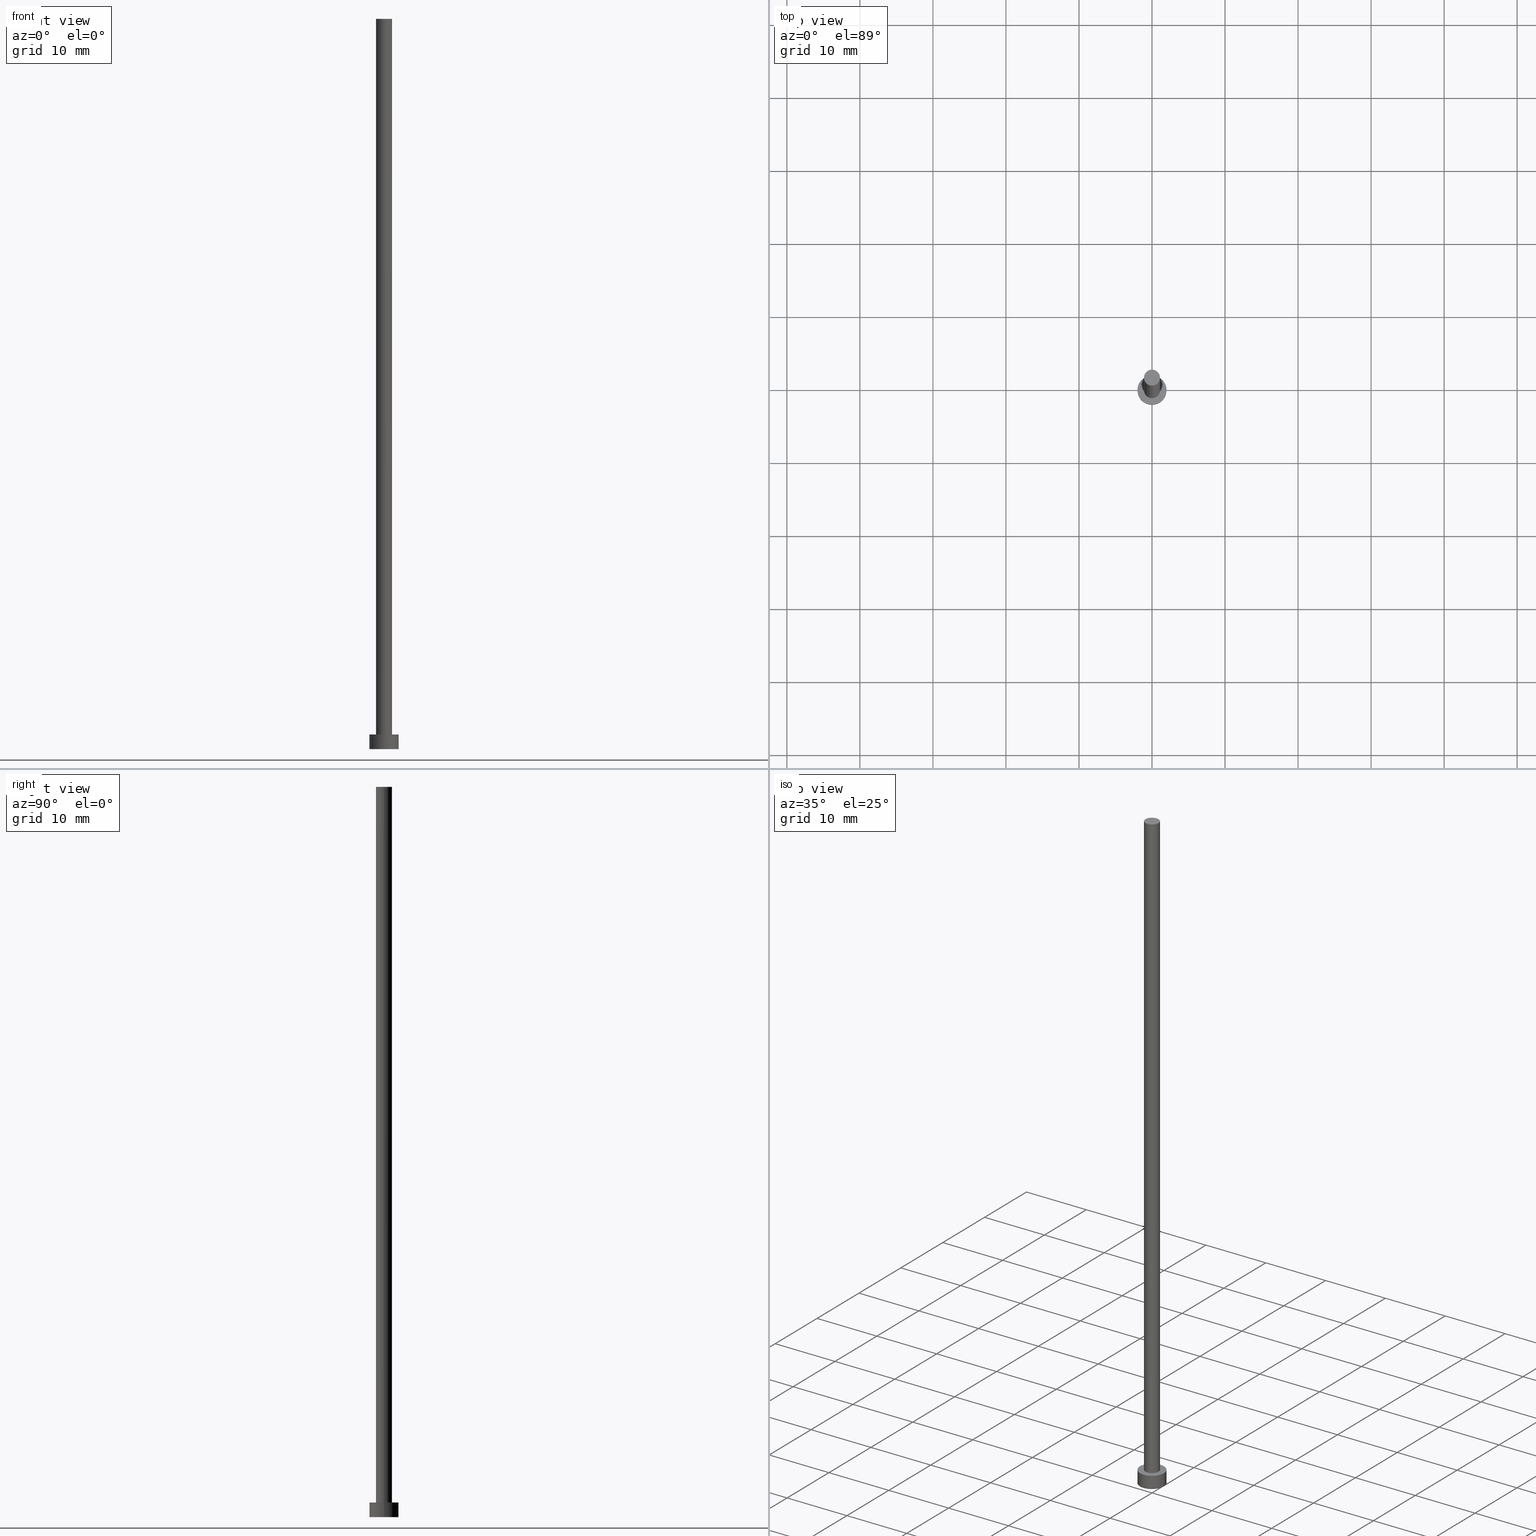
[diagram: canonical four-view strip — front | top / right | iso, engineering-drawing reading convention]
A machine part, canonical four-view strip (front | top / right | iso — engineering-drawing reading convention). The complete STEP part file that produces these views, byte-faithful:
ISO-10303-21;
HEADER;
FILE_DESCRIPTION (( 'STEP AP203' ),
    '1' );
FILE_NAME ('f311.STEP',
    '2023-02-13T17:06:49',
    ( '' ),
    ( '' ),
    'SwSTEP 2.0',
    'SolidWorks 2019',
    '' );
FILE_SCHEMA (( 'CONFIG_CONTROL_DESIGN' ));
ENDSEC;

DATA;
#1 = CC_DESIGN_PERSON_AND_ORGANIZATION_ASSIGNMENT ( #7, #226, ( #59 ) ) ;
#2 = SECURITY_CLASSIFICATION_LEVEL ( 'unclassified' ) ;
#3 = FACE_BOUND ( 'NONE', #13, .T. ) ;
#4 = VECTOR ( 'NONE', #214, 1000.000000000000000 ) ;
#5 = ORIENTED_EDGE ( 'NONE', *, *, #99, .T. ) ;
#6 = DIRECTION ( 'NONE',  ( -0.000000000000000000, -0.000000000000000000, -1.000000000000000000 ) ) ;
#7 = PERSON_AND_ORGANIZATION ( #224, #88 ) ;
#8 = PERSON_AND_ORGANIZATION_ROLE ( 'classification_officer' ) ;
#9 = CC_DESIGN_PERSON_AND_ORGANIZATION_ASSIGNMENT ( #176, #155, ( #157 ) ) ;
#10 = ORIENTED_EDGE ( 'NONE', *, *, #99, .F. ) ;
#11 = AXIS2_PLACEMENT_3D ( 'NONE', #168, #251, #218 ) ;
#12 = VERTEX_POINT ( 'NONE', #84 ) ;
#13 = EDGE_LOOP ( 'NONE', ( #10, #86 ) ) ;
#14 = ORIENTED_EDGE ( 'NONE', *, *, #132, .T. ) ;
#15 = DIRECTION ( 'NONE',  ( 1.000000000000000000, 0.000000000000000000, -0.000000000000000000 ) ) ;
#16 = CIRCLE ( 'NONE', #39, 1.100000000000000089 ) ;
#17 = PERSON_AND_ORGANIZATION ( #224, #88 ) ;
#18 = DIRECTION ( 'NONE',  ( 0.000000000000000000, 0.000000000000000000, 1.000000000000000000 ) ) ;
#19 = ADVANCED_FACE ( 'NONE', ( #70 ), #31, .T. ) ;
#20 = PERSON_AND_ORGANIZATION ( #224, #88 ) ;
#21 = EDGE_LOOP ( 'NONE', ( #162, #149 ) ) ;
#22 = CC_DESIGN_APPROVAL ( #163, ( #208 ) ) ;
#23 = ORIENTED_EDGE ( 'NONE', *, *, #178, .T. ) ;
#24 = VECTOR ( 'NONE', #180, 1000.000000000000000 ) ;
#25 = APPROVAL_ROLE ( '' ) ;
#26 = COORDINATED_UNIVERSAL_TIME_OFFSET ( 1, 0, .AHEAD. ) ;
#27 = EDGE_LOOP ( 'NONE', ( #65, #233, #246, #5 ) ) ;
#28 = EDGE_CURVE ( 'NONE', #12, #203, #140, .T. ) ;
#29 = EDGE_LOOP ( 'NONE', ( #127, #14, #23, #185 ) ) ;
#30 = ORIENTED_EDGE ( 'NONE', *, *, #53, .T. ) ;
#31 = PLANE ( 'NONE',  #46 ) ;
#32 = FACE_OUTER_BOUND ( 'NONE', #118, .T. ) ;
#33 = APPROVAL_PERSON_ORGANIZATION ( #223, #163, #25 ) ;
#34 = CALENDAR_DATE ( 2023, 13, 2 ) ;
#35 = PLANE ( 'NONE',  #209 ) ;
#36 = ADVANCED_FACE ( 'NONE', ( #32 ), #51, .T. ) ;
#37 = DIRECTION ( 'NONE',  ( 1.000000000000000000, 0.000000000000000000, -0.000000000000000000 ) ) ;
#38 = CARTESIAN_POINT ( 'NONE',  ( 0.000000000000000000, 0.000000000000000000, 2.000000000000000000 ) ) ;
#39 = AXIS2_PLACEMENT_3D ( 'NONE', #252, #55, #238 ) ;
#40 = APPROVAL_DATE_TIME ( #179, #105 ) ;
#41 = COORDINATED_UNIVERSAL_TIME_OFFSET ( 1, 0, .AHEAD. ) ;
#42 = APPLICATION_CONTEXT ( 'configuration controlled 3d designs of mechanical parts and assemblies' ) ;
#43 = SECURITY_CLASSIFICATION ( '', '', #2 ) ;
#44 = CARTESIAN_POINT ( 'NONE',  ( -1.100000000000000089, 0.000000000000000000, 100.0000000000000000 ) ) ;
#45 = ADVANCED_FACE ( 'NONE', ( #165 ), #35, .F. ) ;
#46 = AXIS2_PLACEMENT_3D ( 'NONE', #145, #219, #15 ) ;
#47 = SHAPE_DEFINITION_REPRESENTATION ( #54, #96 ) ;
#48 = AXIS2_PLACEMENT_3D ( 'NONE', #225, #95, #109 ) ;
#49 = ORIENTED_EDGE ( 'NONE', *, *, #62, .T. ) ;
#50 = CARTESIAN_POINT ( 'NONE',  ( 1.100000000000000089, 1.347111479062088503E-16, 2.000000000000000000 ) ) ;
#51 = CYLINDRICAL_SURFACE ( 'NONE', #187, 2.000000000000000000 ) ;
#52 = VECTOR ( 'NONE', #249, 1000.000000000000000 ) ;
#53 = EDGE_CURVE ( 'NONE', #248, #134, #212, .T. ) ;
#54 = PRODUCT_DEFINITION_SHAPE ( 'NONE', 'NONE',  #157 ) ;
#55 = DIRECTION ( 'NONE',  ( 0.000000000000000000, 0.000000000000000000, 1.000000000000000000 ) ) ;
#56 = ORIENTED_EDGE ( 'NONE', *, *, #53, .F. ) ;
#57 = CC_DESIGN_DATE_AND_TIME_ASSIGNMENT ( #243, #158, ( #43 ) ) ;
#58 = CLOSED_SHELL ( 'NONE', ( #147, #241, #36, #91, #45, #85, #19 ) ) ;
#59 = PRODUCT ( 'f311', 'f311', '', ( #131 ) ) ;
#60 = PERSON_AND_ORGANIZATION ( #224, #88 ) ;
#61 = FACE_OUTER_BOUND ( 'NONE', #143, .T. ) ;
#62 = EDGE_CURVE ( 'NONE', #240, #12, #119, .T. ) ;
#63 = DIRECTION ( 'NONE',  ( 1.000000000000000000, 0.000000000000000000, 0.000000000000000000 ) ) ;
#64 = APPROVAL_ROLE ( '' ) ;
#65 = ORIENTED_EDGE ( 'NONE', *, *, #28, .F. ) ;
#66 = LOCAL_TIME ( 18, 6, 49.00000000000000000, #115 ) ;
#67 = MANIFOLD_SOLID_BREP ( 'P�idat vysunut�m3', #58 ) ;
#68 = ORIENTED_EDGE ( 'NONE', *, *, #82, .T. ) ;
#69 = DIRECTION ( 'NONE',  ( -0.000000000000000000, -0.000000000000000000, -1.000000000000000000 ) ) ;
#70 = FACE_OUTER_BOUND ( 'NONE', #184, .T. ) ;
#71 = AXIS2_PLACEMENT_3D ( 'NONE', #213, #198, #164 ) ;
#72 = ORIENTED_EDGE ( 'NONE', *, *, #178, .F. ) ;
#73 = APPLICATION_PROTOCOL_DEFINITION ( 'international standard', 'config_control_design', 1994, #193 ) ;
#74 = CALENDAR_DATE ( 2023, 13, 2 ) ;
#75 = DIRECTION ( 'NONE',  ( 0.000000000000000000, 0.000000000000000000, 1.000000000000000000 ) ) ;
#76 = CC_DESIGN_PERSON_AND_ORGANIZATION_ASSIGNMENT ( #20, #172, ( #208 ) ) ;
#77 = AXIS2_PLACEMENT_3D ( 'NONE', #113, #75, #206 ) ;
#78 = DATE_AND_TIME ( #34, #161 ) ;
#79 = CIRCLE ( 'NONE', #129, 1.100000000000000089 ) ;
#80 = VECTOR ( 'NONE', #6, 1000.000000000000000 ) ;
#81 = ORIENTED_EDGE ( 'NONE', *, *, #128, .T. ) ;
#82 = EDGE_CURVE ( 'NONE', #203, #152, #16, .T. ) ;
#83 = CARTESIAN_POINT ( 'NONE',  ( -2.000000000000000000, 0.000000000000000000, 2.000000000000000000 ) ) ;
#84 = CARTESIAN_POINT ( 'NONE',  ( 1.100000000000000089, 1.347111479062088503E-16, 100.0000000000000000 ) ) ;
#85 = ADVANCED_FACE ( 'NONE', ( #92 ), #123, .T. ) ;
#86 = ORIENTED_EDGE ( 'NONE', *, *, #82, .F. ) ;
#87 = CARTESIAN_POINT ( 'NONE',  ( 0.000000000000000000, 0.000000000000000000, 2.000000000000000000 ) ) ;
#88 = ORGANIZATION ( 'NEUR�EN�', 'NEUR�EN�', '' ) ;
#89 = CYLINDRICAL_SURFACE ( 'NONE', #71, 2.000000000000000000 ) ;
#90 = DATE_AND_TIME ( #151, #98 ) ;
#91 = ADVANCED_FACE ( 'NONE', ( #3, #175 ), #120, .T. ) ;
#92 = FACE_OUTER_BOUND ( 'NONE', #27, .T. ) ;
#93 = DIRECTION ( 'NONE',  ( 1.000000000000000000, 0.000000000000000000, 0.000000000000000000 ) ) ;
#94 = CC_DESIGN_SECURITY_CLASSIFICATION ( #43, ( #208 ) ) ;
#95 = DIRECTION ( 'NONE',  ( -0.000000000000000000, -0.000000000000000000, -1.000000000000000000 ) ) ;
#96 = ADVANCED_BREP_SHAPE_REPRESENTATION ( 'f311', ( #67, #211 ), #255 ) ;
#97 = CARTESIAN_POINT ( 'NONE',  ( 0.000000000000000000, 0.000000000000000000, 2.000000000000000000 ) ) ;
#98 = LOCAL_TIME ( 18, 6, 49.00000000000000000, #26 ) ;
#99 = EDGE_CURVE ( 'NONE', #152, #203, #167, .T. ) ;
#100 = CARTESIAN_POINT ( 'NONE',  ( 0.000000000000000000, 0.000000000000000000, 0.000000000000000000 ) ) ;
#101 = APPLICATION_PROTOCOL_DEFINITION ( 'international standard', 'config_control_design', 1994, #42 ) ;
#102 = DIRECTION ( 'NONE',  ( 1.000000000000000000, 0.000000000000000000, -0.000000000000000000 ) ) ;
#103 = CARTESIAN_POINT ( 'NONE',  ( 0.000000000000000000, 0.000000000000000000, 100.0000000000000000 ) ) ;
#104 = DESIGN_CONTEXT ( 'detailed design', #42, 'design' ) ;
#105 = APPROVAL ( #169, 'NEUR�EN�' ) ;
#106 = DIRECTION ( 'NONE',  ( -0.000000000000000000, -0.000000000000000000, -1.000000000000000000 ) ) ;
#107 = COORDINATED_UNIVERSAL_TIME_OFFSET ( 1, 0, .AHEAD. ) ;
#108 = CYLINDRICAL_SURFACE ( 'NONE', #48, 1.100000000000000089 ) ;
#109 = DIRECTION ( 'NONE',  ( -1.000000000000000000, 0.000000000000000000, 0.000000000000000000 ) ) ;
#110 = CC_DESIGN_APPROVAL ( #197, ( #43 ) ) ;
#111 = APPROVAL_STATUS ( 'not_yet_approved' ) ;
#112 = DIRECTION ( 'NONE',  ( 1.000000000000000000, 0.000000000000000000, 0.000000000000000000 ) ) ;
#113 = CARTESIAN_POINT ( 'NONE',  ( 0.000000000000000000, 0.000000000000000000, 2.000000000000000000 ) ) ;
#114 = CC_DESIGN_PERSON_AND_ORGANIZATION_ASSIGNMENT ( #17, #237, ( #208 ) ) ;
#115 = COORDINATED_UNIVERSAL_TIME_OFFSET ( 1, 0, .AHEAD. ) ;
#116 = ORIENTED_EDGE ( 'NONE', *, *, #132, .F. ) ;
#117 = APPROVAL_PERSON_ORGANIZATION ( #133, #105, #253 ) ;
#118 = EDGE_LOOP ( 'NONE', ( #116, #189, #210, #30 ) ) ;
#119 = CIRCLE ( 'NONE', #11, 1.100000000000000089 ) ;
#120 = PLANE ( 'NONE',  #194 ) ;
#121 = EDGE_CURVE ( 'NONE', #240, #152, #202, .T. ) ;
#122 =( LENGTH_UNIT ( ) NAMED_UNIT ( * ) SI_UNIT ( .MILLI., .METRE. ) );
#123 = CYLINDRICAL_SURFACE ( 'NONE', #156, 1.100000000000000089 ) ;
#124 = APPROVAL_STATUS ( 'not_yet_approved' ) ;
#125 = DIRECTION ( 'NONE',  ( 1.000000000000000000, 0.000000000000000000, 0.000000000000000000 ) ) ;
#126 = DIRECTION ( 'NONE',  ( 1.000000000000000000, 0.000000000000000000, 0.000000000000000000 ) ) ;
#127 = ORIENTED_EDGE ( 'NONE', *, *, #192, .F. ) ;
#128 = EDGE_CURVE ( 'NONE', #12, #240, #79, .T. ) ;
#129 = AXIS2_PLACEMENT_3D ( 'NONE', #177, #136, #112 ) ;
#130 = CARTESIAN_POINT ( 'NONE',  ( 1.100000000000000089, 1.347111479062088503E-16, 100.0000000000000000 ) ) ;
#131 = MECHANICAL_CONTEXT ( 'NONE', #193, 'mechanical' ) ;
#132 = EDGE_CURVE ( 'NONE', #250, #134, #222, .T. ) ;
#133 = PERSON_AND_ORGANIZATION ( #224, #88 ) ;
#134 = VERTEX_POINT ( 'NONE', #159 ) ;
#135 = PERSON_AND_ORGANIZATION ( #224, #88 ) ;
#136 = DIRECTION ( 'NONE',  ( 0.000000000000000000, 0.000000000000000000, 1.000000000000000000 ) ) ;
#137 = CARTESIAN_POINT ( 'NONE',  ( -2.000000000000000000, 0.000000000000000000, 2.000000000000000000 ) ) ;
#138 = CC_DESIGN_APPROVAL ( #105, ( #157 ) ) ;
#139 = LINE ( 'NONE', #83, #52 ) ;
#140 = LINE ( 'NONE', #130, #4 ) ;
#141 = CC_DESIGN_PERSON_AND_ORGANIZATION_ASSIGNMENT ( #60, #8, ( #43 ) ) ;
#142 = CARTESIAN_POINT ( 'NONE',  ( 2.000000000000000000, 2.449293598294706414E-16, 2.000000000000000000 ) ) ;
#143 = EDGE_LOOP ( 'NONE', ( #245, #215, #68, #247 ) ) ;
#144 =( NAMED_UNIT ( * ) SI_UNIT ( $, .STERADIAN. ) SOLID_ANGLE_UNIT ( ) );
#145 = CARTESIAN_POINT ( 'NONE',  ( 0.000000000000000000, 0.000000000000000000, 100.0000000000000000 ) ) ;
#146 = LOCAL_TIME ( 18, 6, 49.00000000000000000, #217 ) ;
#147 = ADVANCED_FACE ( 'NONE', ( #61 ), #108, .T. ) ;
#148 = DATE_TIME_ROLE ( 'creation_date' ) ;
#149 = ORIENTED_EDGE ( 'NONE', *, *, #192, .T. ) ;
#150 = UNCERTAINTY_MEASURE_WITH_UNIT (LENGTH_MEASURE( 1.000000000000000082E-05 ), #122, 'distance_accuracy_value', 'NONE');
#151 = CALENDAR_DATE ( 2023, 13, 2 ) ;
#152 = VERTEX_POINT ( 'NONE', #205 ) ;
#153 = DIRECTION ( 'NONE',  ( 0.000000000000000000, 0.000000000000000000, 1.000000000000000000 ) ) ;
#154 = LOCAL_TIME ( 18, 6, 49.00000000000000000, #41 ) ;
#155 = PERSON_AND_ORGANIZATION_ROLE ( 'creator' ) ;
#156 = AXIS2_PLACEMENT_3D ( 'NONE', #103, #69, #234 ) ;
#157 = PRODUCT_DEFINITION ( 'NEZN�M�', '', #208, #104 ) ;
#158 = DATE_TIME_ROLE ( 'classification_date' ) ;
#159 = CARTESIAN_POINT ( 'NONE',  ( 2.000000000000000000, 2.449293598294706414E-16, 0.000000000000000000 ) ) ;
#160 = AXIS2_PLACEMENT_3D ( 'NONE', #183, #228, #63 ) ;
#161 = LOCAL_TIME ( 18, 6, 49.00000000000000000, #107 ) ;
#162 = ORIENTED_EDGE ( 'NONE', *, *, #186, .T. ) ;
#163 = APPROVAL ( #124, 'NEUR�EN�' ) ;
#164 = DIRECTION ( 'NONE',  ( -1.000000000000000000, 0.000000000000000000, 0.000000000000000000 ) ) ;
#165 = FACE_OUTER_BOUND ( 'NONE', #199, .T. ) ;
#166 =( NAMED_UNIT ( * ) PLANE_ANGLE_UNIT ( ) SI_UNIT ( $, .RADIAN. ) );
#167 = CIRCLE ( 'NONE', #188, 1.100000000000000089 ) ;
#168 = CARTESIAN_POINT ( 'NONE',  ( 0.000000000000000000, 0.000000000000000000, 100.0000000000000000 ) ) ;
#169 = APPROVAL_STATUS ( 'not_yet_approved' ) ;
#170 = DIRECTION ( 'NONE',  ( 0.000000000000000000, 0.000000000000000000, 1.000000000000000000 ) ) ;
#171 = APPROVAL_PERSON_ORGANIZATION ( #135, #197, #64 ) ;
#172 = PERSON_AND_ORGANIZATION_ROLE ( 'design_supplier' ) ;
#173 = CARTESIAN_POINT ( 'NONE',  ( 0.000000000000000000, 0.000000000000000000, 0.000000000000000000 ) ) ;
#174 = CARTESIAN_POINT ( 'NONE',  ( 0.000000000000000000, 0.000000000000000000, 0.000000000000000000 ) ) ;
#175 = FACE_OUTER_BOUND ( 'NONE', #21, .T. ) ;
#176 = PERSON_AND_ORGANIZATION ( #224, #88 ) ;
#177 = CARTESIAN_POINT ( 'NONE',  ( 0.000000000000000000, 0.000000000000000000, 100.0000000000000000 ) ) ;
#178 = EDGE_CURVE ( 'NONE', #134, #248, #220, .T. ) ;
#179 = DATE_AND_TIME ( #74, #146 ) ;
#180 = DIRECTION ( 'NONE',  ( -0.000000000000000000, -0.000000000000000000, -1.000000000000000000 ) ) ;
#181 = PRODUCT_RELATED_PRODUCT_CATEGORY ( 'detail', '', ( #59 ) ) ;
#182 = VERTEX_POINT ( 'NONE', #137 ) ;
#183 = CARTESIAN_POINT ( 'NONE',  ( 0.000000000000000000, 0.000000000000000000, 0.000000000000000000 ) ) ;
#184 = EDGE_LOOP ( 'NONE', ( #49, #81 ) ) ;
#185 = ORIENTED_EDGE ( 'NONE', *, *, #229, .F. ) ;
#186 = EDGE_CURVE ( 'NONE', #182, #250, #190, .T. ) ;
#187 = AXIS2_PLACEMENT_3D ( 'NONE', #38, #106, #201 ) ;
#188 = AXIS2_PLACEMENT_3D ( 'NONE', #87, #170, #254 ) ;
#189 = ORIENTED_EDGE ( 'NONE', *, *, #186, .F. ) ;
#190 = CIRCLE ( 'NONE', #77, 2.000000000000000000 ) ;
#191 = DIRECTION ( 'NONE',  ( 0.000000000000000000, 0.000000000000000000, 1.000000000000000000 ) ) ;
#192 = EDGE_CURVE ( 'NONE', #250, #182, #230, .T. ) ;
#193 = APPLICATION_CONTEXT ( 'configuration controlled 3d designs of mechanical parts and assemblies' ) ;
#194 = AXIS2_PLACEMENT_3D ( 'NONE', #196, #235, #102 ) ;
#195 = APPROVAL_DATE_TIME ( #90, #163 ) ;
#196 = CARTESIAN_POINT ( 'NONE',  ( 0.000000000000000000, 0.000000000000000000, 2.000000000000000000 ) ) ;
#197 = APPROVAL ( #111, 'NEUR�EN�' ) ;
#198 = DIRECTION ( 'NONE',  ( -0.000000000000000000, -0.000000000000000000, -1.000000000000000000 ) ) ;
#199 = EDGE_LOOP ( 'NONE', ( #56, #72 ) ) ;
#200 = AXIS2_PLACEMENT_3D ( 'NONE', #97, #153, #126 ) ;
#201 = DIRECTION ( 'NONE',  ( -1.000000000000000000, 0.000000000000000000, 0.000000000000000000 ) ) ;
#202 = LINE ( 'NONE', #44, #24 ) ;
#203 = VERTEX_POINT ( 'NONE', #50 ) ;
#204 = CALENDAR_DATE ( 2023, 13, 2 ) ;
#205 = CARTESIAN_POINT ( 'NONE',  ( -1.100000000000000089, 0.000000000000000000, 2.000000000000000000 ) ) ;
#206 = DIRECTION ( 'NONE',  ( 1.000000000000000000, 0.000000000000000000, 0.000000000000000000 ) ) ;
#207 = DATE_AND_TIME ( #231, #66 ) ;
#208 = PRODUCT_DEFINITION_FORMATION_WITH_SPECIFIED_SOURCE ( 'LIBOVOLN�', '', #59, .NOT_KNOWN. ) ;
#209 = AXIS2_PLACEMENT_3D ( 'NONE', #100, #191, #37 ) ;
#210 = ORIENTED_EDGE ( 'NONE', *, *, #229, .T. ) ;
#211 = AXIS2_PLACEMENT_3D ( 'NONE', #174, #239, #93 ) ;
#212 = CIRCLE ( 'NONE', #244, 2.000000000000000000 ) ;
#213 = CARTESIAN_POINT ( 'NONE',  ( 0.000000000000000000, 0.000000000000000000, 2.000000000000000000 ) ) ;
#214 = DIRECTION ( 'NONE',  ( -0.000000000000000000, -0.000000000000000000, -1.000000000000000000 ) ) ;
#215 = ORIENTED_EDGE ( 'NONE', *, *, #28, .T. ) ;
#216 = CARTESIAN_POINT ( 'NONE',  ( -2.000000000000000000, 0.000000000000000000, 0.000000000000000000 ) ) ;
#217 = COORDINATED_UNIVERSAL_TIME_OFFSET ( 1, 0, .AHEAD. ) ;
#218 = DIRECTION ( 'NONE',  ( 1.000000000000000000, 0.000000000000000000, 0.000000000000000000 ) ) ;
#219 = DIRECTION ( 'NONE',  ( 0.000000000000000000, 0.000000000000000000, 1.000000000000000000 ) ) ;
#220 = CIRCLE ( 'NONE', #160, 2.000000000000000000 ) ;
#221 = CC_DESIGN_DATE_AND_TIME_ASSIGNMENT ( #78, #148, ( #157 ) ) ;
#222 = LINE ( 'NONE', #242, #80 ) ;
#223 = PERSON_AND_ORGANIZATION ( #224, #88 ) ;
#224 = PERSON ( 'NEUR�EN�', 'NEUR�EN�', 'NEUR�EN�', ('NEUR�EN�'), ('NEUR�EN�'), ('NEUR�EN�') ) ;
#225 = CARTESIAN_POINT ( 'NONE',  ( 0.000000000000000000, 0.000000000000000000, 100.0000000000000000 ) ) ;
#226 = PERSON_AND_ORGANIZATION_ROLE ( 'design_owner' ) ;
#227 = APPROVAL_DATE_TIME ( #207, #197 ) ;
#228 = DIRECTION ( 'NONE',  ( 0.000000000000000000, 0.000000000000000000, 1.000000000000000000 ) ) ;
#229 = EDGE_CURVE ( 'NONE', #182, #248, #139, .T. ) ;
#230 = CIRCLE ( 'NONE', #200, 2.000000000000000000 ) ;
#231 = CALENDAR_DATE ( 2023, 13, 2 ) ;
#232 = FACE_OUTER_BOUND ( 'NONE', #29, .T. ) ;
#233 = ORIENTED_EDGE ( 'NONE', *, *, #62, .F. ) ;
#234 = DIRECTION ( 'NONE',  ( -1.000000000000000000, 0.000000000000000000, 0.000000000000000000 ) ) ;
#235 = DIRECTION ( 'NONE',  ( 0.000000000000000000, 0.000000000000000000, 1.000000000000000000 ) ) ;
#236 = CARTESIAN_POINT ( 'NONE',  ( -1.100000000000000089, 0.000000000000000000, 100.0000000000000000 ) ) ;
#237 = PERSON_AND_ORGANIZATION_ROLE ( 'creator' ) ;
#238 = DIRECTION ( 'NONE',  ( 1.000000000000000000, 0.000000000000000000, 0.000000000000000000 ) ) ;
#239 = DIRECTION ( 'NONE',  ( 0.000000000000000000, 0.000000000000000000, 1.000000000000000000 ) ) ;
#240 = VERTEX_POINT ( 'NONE', #236 ) ;
#241 = ADVANCED_FACE ( 'NONE', ( #232 ), #89, .T. ) ;
#242 = CARTESIAN_POINT ( 'NONE',  ( 2.000000000000000000, 2.449293598294706414E-16, 2.000000000000000000 ) ) ;
#243 = DATE_AND_TIME ( #204, #154 ) ;
#244 = AXIS2_PLACEMENT_3D ( 'NONE', #173, #18, #125 ) ;
#245 = ORIENTED_EDGE ( 'NONE', *, *, #128, .F. ) ;
#246 = ORIENTED_EDGE ( 'NONE', *, *, #121, .T. ) ;
#247 = ORIENTED_EDGE ( 'NONE', *, *, #121, .F. ) ;
#248 = VERTEX_POINT ( 'NONE', #216 ) ;
#249 = DIRECTION ( 'NONE',  ( -0.000000000000000000, -0.000000000000000000, -1.000000000000000000 ) ) ;
#250 = VERTEX_POINT ( 'NONE', #142 ) ;
#251 = DIRECTION ( 'NONE',  ( 0.000000000000000000, 0.000000000000000000, 1.000000000000000000 ) ) ;
#252 = CARTESIAN_POINT ( 'NONE',  ( 0.000000000000000000, 0.000000000000000000, 2.000000000000000000 ) ) ;
#253 = APPROVAL_ROLE ( '' ) ;
#254 = DIRECTION ( 'NONE',  ( 1.000000000000000000, 0.000000000000000000, 0.000000000000000000 ) ) ;
#255 =( GEOMETRIC_REPRESENTATION_CONTEXT ( 3 ) GLOBAL_UNCERTAINTY_ASSIGNED_CONTEXT ( ( #150 ) ) GLOBAL_UNIT_ASSIGNED_CONTEXT ( ( #122, #166, #144 ) ) REPRESENTATION_CONTEXT ( 'NONE', 'WORKASPACE' ) );
ENDSEC;
END-ISO-10303-21;
